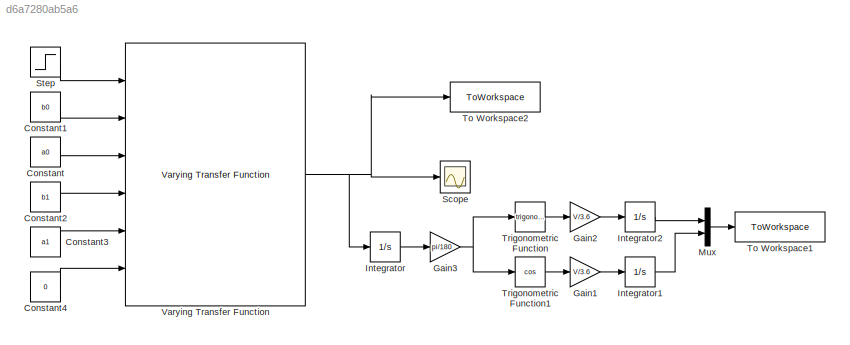
MODEL slx_d6a7280ab5a6
KIND model
CONFIG AbsTol = auto
CONFIG EnableMultiTasking = off
CONFIG FixedStep = auto
CONFIG MaxStep = auto
CONFIG MinStep = auto
CONFIG RelTol = 1e-3
CONFIG SampleTimeConstraint = Unconstrained
CONFIG Solver = VariableStepAuto
CONFIG SolverName = VariableStepAuto
CONFIG StartTime = 0.0
CONFIG StopTime = 140
BLOCK [Constant] Constant
  Value = a0
BLOCK [Constant] Constant1
  Value = b0
BLOCK [Constant] Constant2
  Value = b1
BLOCK [Constant] Constant3
  Value = a1
BLOCK [Constant] Constant4
  Value = 0
BLOCK [Gain] Gain1
  Gain = V/3.6
  OutDataTypeStr = Inherit: Inherit via internal rule
  ParamDataTypeStr = Inherit: Inherit via internal rule
  SaturateOnIntegerOverflow = off
BLOCK [Gain] Gain2
  Gain = V/3.6
  OutDataTypeStr = Inherit: Inherit via internal rule
  ParamDataTypeStr = Inherit: Inherit via internal rule
  SaturateOnIntegerOverflow = off
BLOCK [Gain] Gain3
  Gain = pi/180
  OutDataTypeStr = Inherit: Inherit via internal rule
  ParamDataTypeStr = Inherit: Inherit via internal rule
  SaturateOnIntegerOverflow = off
BLOCK [Integrator] Integrator
  Ports = [1, 1]
BLOCK [Integrator] Integrator1
  Ports = [1, 1]
BLOCK [Integrator] Integrator2
  Ports = [1, 1]
BLOCK [Mux] Mux
  DisplayOption = bar
  Inputs = 2
  Ports = [2, 1]
BLOCK [Scope] Scope
  Floating = off
  NumInputPorts = 1
  Ports = [1]
  ScopeSpecificationString = Simulink.scopes.TimeScopeBlockCfg('CurrentConfiguration', extmgr.ConfigurationSet(extmgr.Configuration('Core','General UI',true),extmgr.Configuration('Core','Source UI',true),extmgr.Configuration('Sources','WiredSimulink',true),extmgr.Configuration('Visuals','Time Domain',true,'SerializedDisplays',{struct('MinYLimReal','-1.49132','MaxYLimReal','13.42186','YLabelReal','','MinYLimMag','0.00000','Max...<+1572ch>
BLOCK [Step] Step
  SampleTime = 0
  Time = 0
BLOCK [ToWorkspace] To Workspace1
  FixptAsFi = on
  MaxDataPoints = inf
  Ports = [1]
  SampleTime = -1
  SaveFormat = Timeseries
  VariableName = position
BLOCK [ToWorkspace] To Workspace2
  FixptAsFi = on
  MaxDataPoints = inf
  Ports = [1]
  SampleTime = -1
  SaveFormat = Timeseries
  VariableName = yawrate
BLOCK [Trigonometry] Trigonometric Function
  Ports = [1, 1]
BLOCK [Trigonometry] Trigonometric Function1
  Operator = cos
  Ports = [1, 1]
BLOCK [Reference] Varying Transfer Function  REF=cstblocks/Linear Parameter Varying/Varying Transfer Function
  Ports = [6, 1]
  SourceBlock = cstblocks/Linear Parameter Varying/Varying Transfer Function
  SourceProductBaseCode = CT
  SourceProductName = Control System Toolbox
  SourceType = Varying Transfer Function
LINE Constant1:1 -> Varying Transfer Function:2
LINE Constant2:1 -> Varying Transfer Function:4
LINE Constant3:1 -> Varying Transfer Function:5
LINE Constant4:1 -> Varying Transfer Function:6
LINE Constant:1 -> Varying Transfer Function:3
LINE Gain1:1 -> Integrator1:1
LINE Gain2:1 -> Integrator2:1
NET Gain3:1 -> Trigonometric Function1:1, Trigonometric Function:1
LINE Integrator1:1 -> Mux:2
LINE Integrator2:1 -> Mux:1
LINE Integrator:1 -> Gain3:1
LINE Mux:1 -> To Workspace1:1
LINE Step:1 -> Varying Transfer Function:1
LINE Trigonometric Function1:1 -> Gain1:1
LINE Trigonometric Function:1 -> Gain2:1
NET Varying Transfer Function:1 -> Integrator:1, Scope:1, To Workspace2:1
note: NET lines group one-source signal fan-out (src -> all destinations, sorted); 1:1 wires keep LINE
